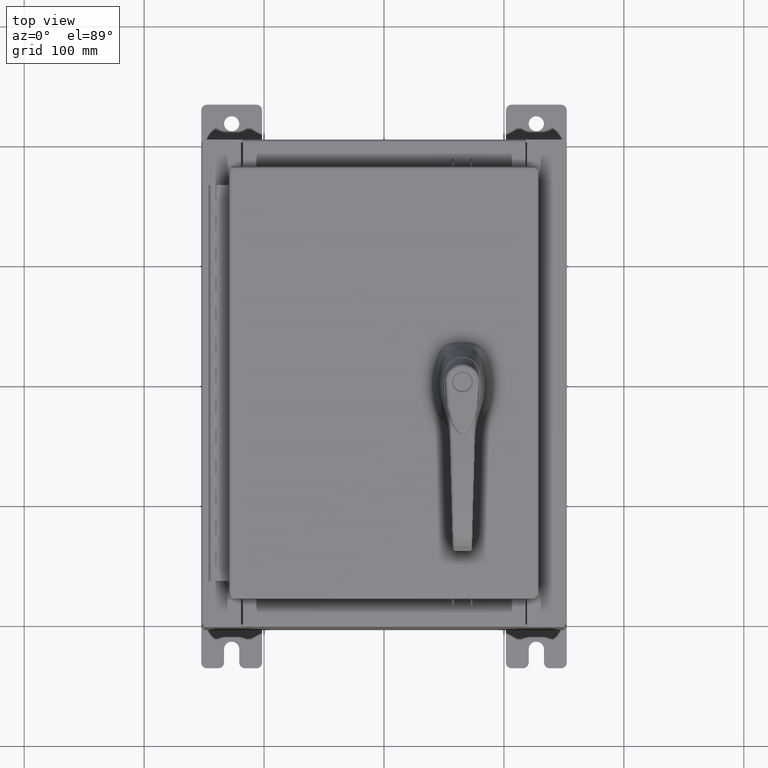
[diagram: clean part render]
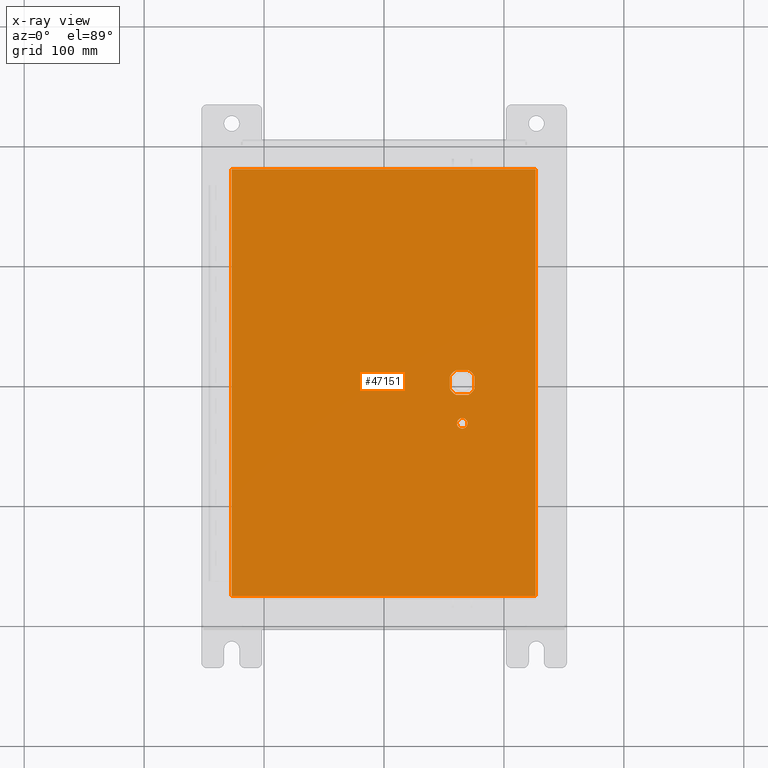
[diagram: x-ray — body ghosted, one internal face saturated and labeled with its STEP entity id]
A machine part, top view, then the same camera in x-ray: the body is ghosted and one INTERNAL B-rep face — a face not visible from any outside direction — is saturated and labeled: STEP entity #47151.
In plain terms, the highlighted planar face has unit normal (0, 0, -1).
Its self-contained STEP definition (entity closure, byte-faithful):
#456 = VERTEX_POINT ( 'NONE', #95402 ) ;
#1579 = DIRECTION ( 'NONE',  ( -1.000000000000000000, 0.0000000000000000000, 0.0000000000000000000 ) ) ;
#2954 = CARTESIAN_POINT ( 'NONE',  ( -4.990300000000000400, 7.006300000000000400, -0.07470000000000019700 ) ) ;
#6226 = ORIENTED_EDGE ( 'NONE', *, *, #22554, .F. ) ;
#6310 = DIRECTION ( 'NONE',  ( 0.0000000000000000000, -1.000000000000000000, 0.0000000000000000000 ) ) ;
#6898 = AXIS2_PLACEMENT_3D ( 'NONE', #37795, #94929, #45984 ) ;
#7813 = VERTEX_POINT ( 'NONE', #88796 ) ;
#8366 = ORIENTED_EDGE ( 'NONE', *, *, #71340, .F. ) ;
#11339 = VERTEX_POINT ( 'NONE', #42406 ) ;
#11709 = FACE_BOUND ( 'NONE', #70349, .T. ) ;
#12344 = CIRCLE ( 'NONE', #6898, 0.4499999999999156900 ) ;
#12878 = LINE ( 'NONE', #79554, #75560 ) ;
#12983 = AXIS2_PLACEMENT_3D ( 'NONE', #73117, #24172, #81289 ) ;
#13375 = ORIENTED_EDGE ( 'NONE', *, *, #23485, .T. ) ;
#15173 = VECTOR ( 'NONE', #62662, 39.37007874015748100 ) ;
#17032 = ORIENTED_EDGE ( 'NONE', *, *, #69329, .F. ) ;
#17325 = EDGE_LOOP ( 'NONE', ( #26145, #24056 ) ) ;
#18115 = VECTOR ( 'NONE', #80635, 39.37007874015748100 ) ;
#19021 = DIRECTION ( 'NONE',  ( 0.0000000000000000000, 1.000000000000000000, 0.0000000000000000000 ) ) ;
#19075 = EDGE_CURVE ( 'NONE', #95246, #61389, #31197, .T. ) ;
#19431 = CIRCLE ( 'NONE', #31597, 0.4499999999999156900 ) ;
#20335 = CARTESIAN_POINT ( 'NONE',  ( 2.778227370756308100, -0.4029999999999252000, -0.07470000000000003000 ) ) ;
#20913 = EDGE_CURVE ( 'NONE', #100567, #63962, #19431, .T. ) ;
#21113 = EDGE_CURVE ( 'NONE', #70193, #65369, #28409, .T. ) ;
#21855 = DIRECTION ( 'NONE',  ( -1.000000000000000000, 0.0000000000000000000, -0.0000000000000000000 ) ) ;
#22554 = EDGE_CURVE ( 'NONE', #57813, #63962, #105133, .T. ) ;
#23485 = EDGE_CURVE ( 'NONE', #28688, #100567, #88372, .T. ) ;
#23508 = EDGE_CURVE ( 'NONE', #61389, #95246, #83207, .T. ) ;
#23674 = EDGE_CURVE ( 'NONE', #11339, #97064, #12878, .T. ) ;
#24056 = ORIENTED_EDGE ( 'NONE', *, *, #23508, .T. ) ;
#24172 = DIRECTION ( 'NONE',  ( -0.0000000000000000000, -0.0000000000000000000, 1.000000000000000000 ) ) ;
#24767 = CARTESIAN_POINT ( 'NONE',  ( 0.0000000000000000000, 0.4029999999999252000, -0.07470000000000003000 ) ) ;
#25459 = VECTOR ( 'NONE', #93758, 39.37007874015748100 ) ;
#26145 = ORIENTED_EDGE ( 'NONE', *, *, #19075, .T. ) ;
#26467 = CARTESIAN_POINT ( 'NONE',  ( 2.377772629243688900, -0.4029999999999250300, -0.07470000000000003000 ) ) ;
#26787 = LINE ( 'NONE', #24767, #89404 ) ;
#27123 = CARTESIAN_POINT ( 'NONE',  ( 0.0000000000000000000, -0.4029999999999252000, -0.07470000000000003000 ) ) ;
#27685 = ORIENTED_EDGE ( 'NONE', *, *, #23674, .T. ) ;
#28324 = VECTOR ( 'NONE', #35333, 39.37007874015748100 ) ;
#28409 = LINE ( 'NONE', #2954, #74435 ) ;
#28688 = VERTEX_POINT ( 'NONE', #26467 ) ;
#28802 = ORIENTED_EDGE ( 'NONE', *, *, #71518, .F. ) ;
#28894 = ORIENTED_EDGE ( 'NONE', *, *, #33349, .T. ) ;
#28920 = ORIENTED_EDGE ( 'NONE', *, *, #21113, .F. ) ;
#29514 = CARTESIAN_POINT ( 'NONE',  ( 2.577999999999998500, -1.338000000000000100, -0.07470000000000003000 ) ) ;
#29803 = CARTESIAN_POINT ( 'NONE',  ( -4.990300000000000400, -7.006300000000000400, -0.07470000000000021100 ) ) ;
#30878 = CARTESIAN_POINT ( 'NONE',  ( 4.990299999999998600, -7.006300000000000400, -0.07470000000000000300 ) ) ;
#31197 = CIRCLE ( 'NONE', #83439, 0.1715000000000000700 ) ;
#31597 = AXIS2_PLACEMENT_3D ( 'NONE', #99509, #50559, #1579 ) ;
#33349 = EDGE_CURVE ( 'NONE', #44211, #7813, #26787, .T. ) ;
#35304 = ORIENTED_EDGE ( 'NONE', *, *, #79314, .T. ) ;
#35333 = DIRECTION ( 'NONE',  ( 1.000000000000000000, 0.0000000000000000000, 0.0000000000000000000 ) ) ;
#37730 = DIRECTION ( 'NONE',  ( -1.000000000000000000, 0.0000000000000000000, 0.0000000000000000000 ) ) ;
#37795 = CARTESIAN_POINT ( 'NONE',  ( 2.577999999999998500, 0.0000000000000000000, -0.07470000000000003000 ) ) ;
#37969 = PLANE ( 'NONE',  #60044 ) ;
#39762 = EDGE_LOOP ( 'NONE', ( #17032, #28802, #28920, #8366 ) ) ;
#40089 = CARTESIAN_POINT ( 'NONE',  ( -4.990300000000000400, 7.006299999999998600, -0.07470000000000000300 ) ) ;
#41661 = CARTESIAN_POINT ( 'NONE',  ( 2.577999999999998500, 0.0000000000000000000, -0.07470000000000003000 ) ) ;
#42406 = CARTESIAN_POINT ( 'NONE',  ( 2.175000000000072700, 0.2002273707563080300, -0.07470000000000003000 ) ) ;
#43901 = CARTESIAN_POINT ( 'NONE',  ( 2.577999999999998500, -1.338000000000000100, -0.07470000000000003000 ) ) ;
#44211 = VERTEX_POINT ( 'NONE', #44767 ) ;
#44767 = CARTESIAN_POINT ( 'NONE',  ( 2.778227370756308100, 0.4029999999999250300, -0.07470000000000003000 ) ) ;
#45919 = VECTOR ( 'NONE', #19021, 39.37007874015748100 ) ;
#45984 = DIRECTION ( 'NONE',  ( -1.000000000000000000, 0.0000000000000000000, 0.0000000000000000000 ) ) ;
#47151 = ADVANCED_FACE ( 'NONE', ( #96142, #52659, #11709 ), #37969, .T. ) ;
#49868 = DIRECTION ( 'NONE',  ( -1.000000000000000000, 8.881784197001256300E-016, 0.0000000000000000000 ) ) ;
#50559 = DIRECTION ( 'NONE',  ( -0.0000000000000000000, -0.0000000000000000000, 1.000000000000000000 ) ) ;
#51946 = DIRECTION ( 'NONE',  ( 0.0000000000000000000, -1.000000000000000000, 0.0000000000000000000 ) ) ;
#52122 = DIRECTION ( 'NONE',  ( -1.000000000000000000, 0.0000000000000000000, 0.0000000000000000000 ) ) ;
#52659 = FACE_OUTER_BOUND ( 'NONE', #39762, .T. ) ;
#53030 = CARTESIAN_POINT ( 'NONE',  ( 4.990299999999998600, 7.006300000000000400, -0.07470000000000021100 ) ) ;
#57078 = CARTESIAN_POINT ( 'NONE',  ( 2.980999999999924400, -0.2002273707563078100, -0.07470000000000003000 ) ) ;
#57813 = VERTEX_POINT ( 'NONE', #69545 ) ;
#58185 = CARTESIAN_POINT ( 'NONE',  ( 2.175000000000072700, -0.2002273707563079800, -0.07470000000000003000 ) ) ;
#59328 = AXIS2_PLACEMENT_3D ( 'NONE', #41661, #98823, #49868 ) ;
#59726 = AXIS2_PLACEMENT_3D ( 'NONE', #43901, #101078, #52122 ) ;
#59895 = CARTESIAN_POINT ( 'NONE',  ( 2.406499999999998500, -1.338000000000000100, -0.07470000000000003000 ) ) ;
#60044 = AXIS2_PLACEMENT_3D ( 'NONE', #62596, #70811, #21855 ) ;
#61389 = VERTEX_POINT ( 'NONE', #59895 ) ;
#62313 = CARTESIAN_POINT ( 'NONE',  ( 2.749499999999998500, -1.338000000000000100, -0.07470000000000003000 ) ) ;
#62596 = CARTESIAN_POINT ( 'NONE',  ( 0.0000000000000000000, 0.0000000000000000000, -0.07470000000000000300 ) ) ;
#62662 = DIRECTION ( 'NONE',  ( 1.000000000000000000, -0.0000000000000000000, -0.0000000000000000000 ) ) ;
#63681 = CIRCLE ( 'NONE', #12983, 0.4499999999999156900 ) ;
#63962 = VERTEX_POINT ( 'NONE', #57078 ) ;
#65369 = VERTEX_POINT ( 'NONE', #72193 ) ;
#68916 = LINE ( 'NONE', #53030, #25459 ) ;
#69329 = EDGE_CURVE ( 'NONE', #71619, #456, #89391, .T. ) ;
#69545 = CARTESIAN_POINT ( 'NONE',  ( 2.980999999999924400, 0.2002273707563080300, -0.07470000000000003000 ) ) ;
#70193 = VERTEX_POINT ( 'NONE', #40089 ) ;
#70349 = EDGE_LOOP ( 'NONE', ( #81868, #6226, #96558, #28894, #73445, #27685, #35304, #13375 ) ) ;
#70811 = DIRECTION ( 'NONE',  ( 0.0000000000000000000, 0.0000000000000000000, -1.000000000000000000 ) ) ;
#71340 = EDGE_CURVE ( 'NONE', #456, #70193, #68916, .T. ) ;
#71518 = EDGE_CURVE ( 'NONE', #65369, #71619, #102173, .T. ) ;
#71619 = VERTEX_POINT ( 'NONE', #30878 ) ;
#72193 = CARTESIAN_POINT ( 'NONE',  ( -4.990299999999999500, -7.006300000000000400, -0.07470000000000000300 ) ) ;
#72456 = CARTESIAN_POINT ( 'NONE',  ( 2.980999999999924400, 4.067195627826724000E-015, -0.07470000000000003000 ) ) ;
#73117 = CARTESIAN_POINT ( 'NONE',  ( 2.577999999999998500, 0.0000000000000000000, -0.07470000000000003000 ) ) ;
#73445 = ORIENTED_EDGE ( 'NONE', *, *, #84955, .T. ) ;
#73710 = DIRECTION ( 'NONE',  ( -1.000000000000000000, 0.0000000000000000000, 0.0000000000000000000 ) ) ;
#74435 = VECTOR ( 'NONE', #51946, 39.37007874015748100 ) ;
#75560 = VECTOR ( 'NONE', #6310, 39.37007874015748100 ) ;
#79314 = EDGE_CURVE ( 'NONE', #97064, #28688, #94789, .T. ) ;
#79554 = CARTESIAN_POINT ( 'NONE',  ( 2.175000000000072700, 0.0000000000000000000, -0.07470000000000003000 ) ) ;
#80635 = DIRECTION ( 'NONE',  ( 1.364372904336406500E-015, -1.000000000000000000, 0.0000000000000000000 ) ) ;
#81289 = DIRECTION ( 'NONE',  ( -1.000000000000000000, 0.0000000000000000000, 0.0000000000000000000 ) ) ;
#81868 = ORIENTED_EDGE ( 'NONE', *, *, #20913, .T. ) ;
#83207 = CIRCLE ( 'NONE', #59726, 0.1715000000000000700 ) ;
#83439 = AXIS2_PLACEMENT_3D ( 'NONE', #29514, #86618, #37730 ) ;
#83679 = EDGE_CURVE ( 'NONE', #57813, #44211, #63681, .T. ) ;
#84378 = CARTESIAN_POINT ( 'NONE',  ( 4.990299999999998600, -7.006300000000000400, -0.07469999999999966900 ) ) ;
#84955 = EDGE_CURVE ( 'NONE', #7813, #11339, #12344, .T. ) ;
#86618 = DIRECTION ( 'NONE',  ( -0.0000000000000000000, -0.0000000000000000000, 1.000000000000000000 ) ) ;
#88372 = LINE ( 'NONE', #27123, #28324 ) ;
#88796 = CARTESIAN_POINT ( 'NONE',  ( 2.377772629243688900, 0.4029999999999252000, -0.07470000000000003000 ) ) ;
#89391 = LINE ( 'NONE', #84378, #45919 ) ;
#89404 = VECTOR ( 'NONE', #73710, 39.37007874015748100 ) ;
#93758 = DIRECTION ( 'NONE',  ( -1.000000000000000000, -0.0000000000000000000, -0.0000000000000000000 ) ) ;
#94789 = CIRCLE ( 'NONE', #59328, 0.4499999999999156900 ) ;
#94929 = DIRECTION ( 'NONE',  ( -0.0000000000000000000, -0.0000000000000000000, 1.000000000000000000 ) ) ;
#95246 = VERTEX_POINT ( 'NONE', #62313 ) ;
#95402 = CARTESIAN_POINT ( 'NONE',  ( 4.990299999999997700, 7.006300000000000400, -0.07470000000000000300 ) ) ;
#96142 = FACE_BOUND ( 'NONE', #17325, .T. ) ;
#96558 = ORIENTED_EDGE ( 'NONE', *, *, #83679, .T. ) ;
#97064 = VERTEX_POINT ( 'NONE', #58185 ) ;
#98823 = DIRECTION ( 'NONE',  ( -0.0000000000000000000, -0.0000000000000000000, 1.000000000000000000 ) ) ;
#99509 = CARTESIAN_POINT ( 'NONE',  ( 2.577999999999998500, 0.0000000000000000000, -0.07470000000000003000 ) ) ;
#100567 = VERTEX_POINT ( 'NONE', #20335 ) ;
#101078 = DIRECTION ( 'NONE',  ( -0.0000000000000000000, -0.0000000000000000000, 1.000000000000000000 ) ) ;
#102173 = LINE ( 'NONE', #29803, #15173 ) ;
#105133 = LINE ( 'NONE', #72456, #18115 ) ;